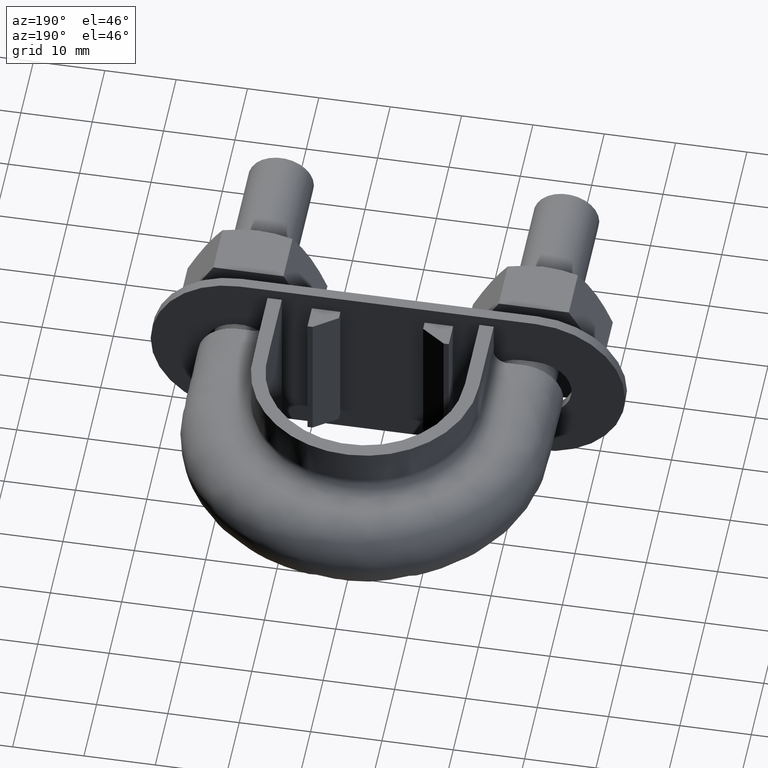
[diagram: clean part render]
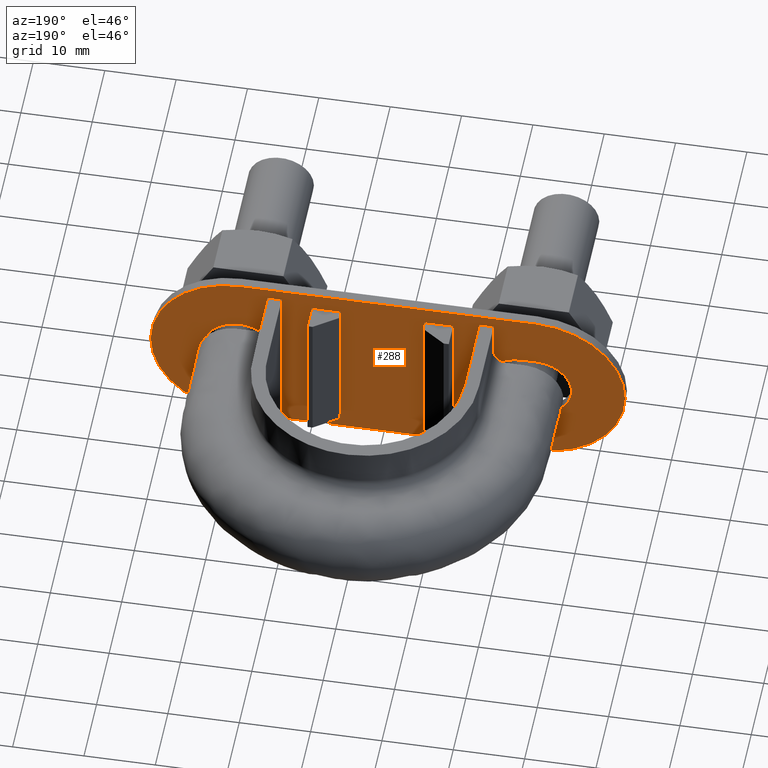
[diagram: same view with one face highlighted and labeled with its STEP entity id]
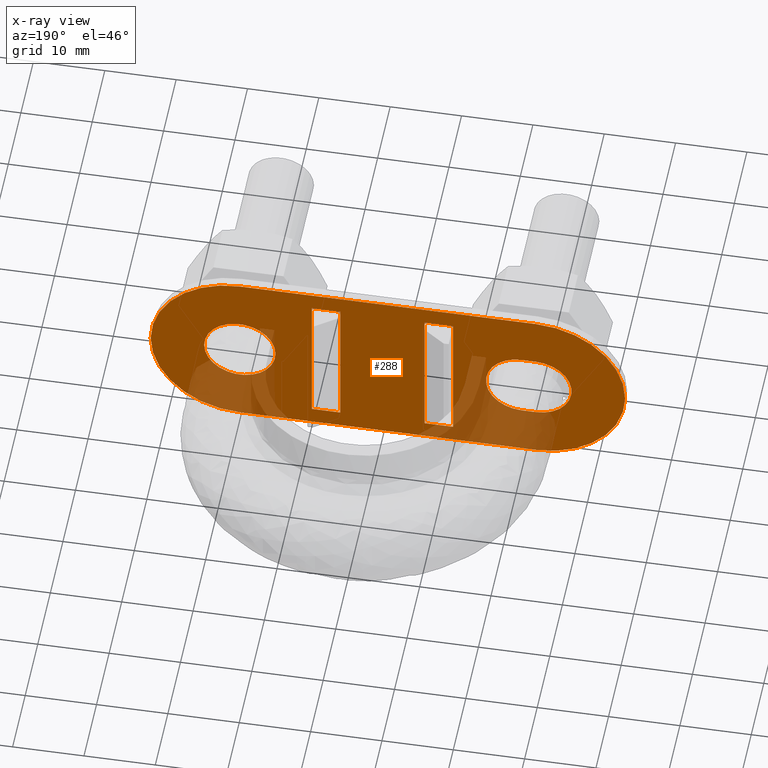
[diagram: x-ray of the same camera — body ghosted, the highlighted face saturated]
A machine part, auxiliary view. The second image highlights one B-rep face of the part: STEP entity #288.
The next image is the same camera in x-ray: the body ghosted, the highlighted face saturated — about 21% of this face is hidden behind the body in this view.
In plain terms, the highlighted planar face has unit normal (-0, 1, 0).
Its self-contained STEP definition (entity closure, byte-faithful):
#288 = ADVANCED_FACE( '', ( #419, #420, #421, #422, #423 ), #424, .T. );
#419 = FACE_BOUND( '', #1362, .T. );
#420 = FACE_OUTER_BOUND( '', #1363, .T. );
#421 = FACE_BOUND( '', #1364, .T. );
#422 = FACE_BOUND( '', #1365, .T. );
#423 = FACE_BOUND( '', #1366, .T. );
#424 = PLANE( '', #1367 );
#1362 = EDGE_LOOP( '', ( #1701, #1702, #1703, #1704 ) );
#1363 = EDGE_LOOP( '', ( #1705, #1706, #1707, #1708, #1709, #1710 ) );
#1364 = EDGE_LOOP( '', ( #1711 ) );
#1365 = EDGE_LOOP( '', ( #1712, #1713, #1714, #1715 ) );
#1366 = EDGE_LOOP( '', ( #1716, #1717, #1718, #1719 ) );
#1367 = AXIS2_PLACEMENT_3D( '', #1720, #1721, #1722 );
#1701 = ORIENTED_EDGE( '', *, *, #2329, .T. );
#1702 = ORIENTED_EDGE( '', *, *, #2330, .T. );
#1703 = ORIENTED_EDGE( '', *, *, #2331, .F. );
#1704 = ORIENTED_EDGE( '', *, *, #2332, .F. );
#1705 = ORIENTED_EDGE( '', *, *, #2316, .T. );
#1706 = ORIENTED_EDGE( '', *, *, #2333, .T. );
#1707 = ORIENTED_EDGE( '', *, *, #2334, .T. );
#1708 = ORIENTED_EDGE( '', *, *, #2335, .T. );
#1709 = ORIENTED_EDGE( '', *, *, #2336, .T. );
#1710 = ORIENTED_EDGE( '', *, *, #2337, .T. );
#1711 = ORIENTED_EDGE( '', *, *, #2338, .F. );
#1712 = ORIENTED_EDGE( '', *, *, #2339, .F. );
#1713 = ORIENTED_EDGE( '', *, *, #2326, .F. );
#1714 = ORIENTED_EDGE( '', *, *, #2340, .F. );
#1715 = ORIENTED_EDGE( '', *, *, #2341, .F. );
#1716 = ORIENTED_EDGE( '', *, *, #2342, .F. );
#1717 = ORIENTED_EDGE( '', *, *, #2343, .T. );
#1718 = ORIENTED_EDGE( '', *, *, #2344, .T. );
#1719 = ORIENTED_EDGE( '', *, *, #2345, .F. );
#1720 = CARTESIAN_POINT( '', ( -21.5000000000058, 32.7999999999977, 2.43519182712688E-007 ) );
#1721 = DIRECTION( '', ( -1.09118538489341E-013, 1.00000000000000, 1.11964944317086E-013 ) );
#1722 = DIRECTION( '', ( 1.13266433177148E-008, -1.11964943081139E-013, 1.00000000000000 ) );
#2316 = EDGE_CURVE( '', #2563, #2564, #2565, .T. );
#2326 = EDGE_CURVE( '', #2579, #2580, #2581, .T. );
#2329 = EDGE_CURVE( '', #2584, #2585, #2586, .T. );
#2330 = EDGE_CURVE( '', #2585, #2587, #2588, .T. );
#2331 = EDGE_CURVE( '', #2589, #2587, #2590, .T. );
#2332 = EDGE_CURVE( '', #2584, #2589, #2591, .T. );
#2333 = EDGE_CURVE( '', #2564, #2592, #2593, .T. );
#2334 = EDGE_CURVE( '', #2592, #2594, #2595, .T. );
#2335 = EDGE_CURVE( '', #2594, #2596, #2597, .T. );
#2336 = EDGE_CURVE( '', #2596, #2598, #2599, .T. );
#2337 = EDGE_CURVE( '', #2598, #2563, #2600, .T. );
#2338 = EDGE_CURVE( '', #2601, #2601, #2602, .T. );
#2339 = EDGE_CURVE( '', #2580, #2603, #2604, .F. );
#2340 = EDGE_CURVE( '', #2605, #2579, #2606, .F. );
#2341 = EDGE_CURVE( '', #2603, #2605, #2607, .T. );
#2342 = EDGE_CURVE( '', #2608, #2609, #2610, .T. );
#2343 = EDGE_CURVE( '', #2608, #2611, #2612, .T. );
#2344 = EDGE_CURVE( '', #2611, #2613, #2614, .T. );
#2345 = EDGE_CURVE( '', #2609, #2613, #2615, .T. );
#2563 = VERTEX_POINT( '', #3101 );
#2564 = VERTEX_POINT( '', #3102 );
#2565 = CIRCLE( '', #3103, 12.5000000000000 );
#2579 = VERTEX_POINT( '', #3126 );
#2580 = VERTEX_POINT( '', #3127 );
#2581 = LINE( '', #3128, #3129 );
#2584 = VERTEX_POINT( '', #3134 );
#2585 = VERTEX_POINT( '', #3135 );
#2586 = LINE( '', #3136, #3137 );
#2587 = VERTEX_POINT( '', #3138 );
#2588 = LINE( '', #3139, #3140 );
#2589 = VERTEX_POINT( '', #3141 );
#2590 = LINE( '', #3142, #3143 );
#2591 = LINE( '', #3144, #3145 );
#2592 = VERTEX_POINT( '', #3146 );
#2593 = LINE( '', #3147, #3148 );
#2594 = VERTEX_POINT( '', #3149 );
#2595 = CIRCLE( '', #3150, 12.5000000000000 );
#2596 = VERTEX_POINT( '', #3151 );
#2597 = CIRCLE( '', #3152, 12.5000000000000 );
#2598 = VERTEX_POINT( '', #3153 );
#2599 = LINE( '', #3154, #3155 );
#2600 = CIRCLE( '', #3156, 12.5000000000000 );
#2601 = VERTEX_POINT( '', #3157 );
#2602 = CIRCLE( '', #3158, 5.00000000000000 );
#2603 = VERTEX_POINT( '', #3159 );
#2604 = CIRCLE( '', #3160, 5.00000000000000 );
#2605 = VERTEX_POINT( '', #3161 );
#2606 = CIRCLE( '', #3162, 5.00000000000000 );
#2607 = LINE( '', #3163, #3164 );
#2608 = VERTEX_POINT( '', #3165 );
#2609 = VERTEX_POINT( '', #3166 );
#2610 = LINE( '', #3167, #3168 );
#2611 = VERTEX_POINT( '', #3169 );
#2612 = LINE( '', #3170, #3171 );
#2613 = VERTEX_POINT( '', #3172 );
#2614 = LINE( '', #3173, #3174 );
#2615 = LINE( '', #3175, #3176 );
#3101 = CARTESIAN_POINT( '', ( -34.0000000000058, 32.7999999999963, 3.85102224184123E-007 ) );
#3102 = CARTESIAN_POINT( '', ( -21.4999998584228, 32.7999999999963, 12.5000002435192 ) );
#3103 = AXIS2_PLACEMENT_3D( '', #3666, #3667, #3668 );
#3126 = CARTESIAN_POINT( '', ( -19.5000000566390, 32.7999999999985, -4.99999977913410 ) );
#3127 = CARTESIAN_POINT( '', ( -21.5000000566390, 32.7999999999983, -4.99999975648082 ) );
#3128 = CARTESIAN_POINT( '', ( -21.5000000566390, 32.7999999999983, -4.99999975648082 ) );
#3129 = VECTOR( '', #3678, 1000.00000000000 );
#3134 = CARTESIAN_POINT( '', ( -9.90000011327222, 32.8000000000001, -9.99999988786988 ) );
#3135 = CARTESIAN_POINT( '', ( -5.90000011327221, 32.8000000000005, -9.99999993317645 ) );
#3136 = CARTESIAN_POINT( '', ( -9.90000011327222, 32.8000000000001, -9.99999988786988 ) );
#3137 = VECTOR( '', #3681, 1000.00000000000 );
#3138 = CARTESIAN_POINT( '', ( -5.89999988673935, 32.7999999999983, 10.0000000668235 ) );
#3139 = CARTESIAN_POINT( '', ( -5.90000011327221, 32.8000000000005, -9.99999993317645 ) );
#3140 = VECTOR( '', #3682, 1000.00000000000 );
#3141 = CARTESIAN_POINT( '', ( -9.89999988673938, 32.7999999999978, 10.0000001121301 ) );
#3142 = CARTESIAN_POINT( '', ( -9.89999988673936, 32.7999999999978, 10.0000001121301 ) );
#3143 = VECTOR( '', #3683, 1000.00000000000 );
#3144 = CARTESIAN_POINT( '', ( -9.90000011327222, 32.8000000000001, -9.99999988786988 ) );
#3145 = VECTOR( '', #3684, 1000.00000000000 );
#3146 = CARTESIAN_POINT( '', ( 20.0000001415773, 32.8000000000008, 12.4999997734635 ) );
#3147 = CARTESIAN_POINT( '', ( -21.4999998584228, 32.7999999999963, 12.5000002435192 ) );
#3148 = VECTOR( '', #3685, 1000.00000000000 );
#3149 = CARTESIAN_POINT( '', ( 32.4999999999942, 32.8000000000036, -3.68119549505017E-007 ) );
#3150 = AXIS2_PLACEMENT_3D( '', #3686, #3687, #3688 );
#3151 = CARTESIAN_POINT( '', ( 19.9999998584112, 32.8000000000036, -12.5000002265365 ) );
#3152 = AXIS2_PLACEMENT_3D( '', #3689, #3690, #3691 );
#3153 = CARTESIAN_POINT( '', ( -21.5000001415889, 32.7999999999991, -12.4999997564808 ) );
#3154 = CARTESIAN_POINT( '', ( 19.9999998584112, 32.8000000000036, -12.5000002265365 ) );
#3155 = VECTOR( '', #3692, 1000.00000000000 );
#3156 = AXIS2_PLACEMENT_3D( '', #3693, #3694, #3695 );
#3157 = CARTESIAN_POINT( '', ( 24.9999999999942, 32.8000100000028, -2.83169729825206E-007 ) );
#3158 = AXIS2_PLACEMENT_3D( '', #3696, #3697, #3698 );
#3159 = CARTESIAN_POINT( '', ( -21.4999999433726, 32.7999999999971, 5.00000024351918 ) );
#3160 = AXIS2_PLACEMENT_3D( '', #3699, #3700, #3701 );
#3161 = CARTESIAN_POINT( '', ( -19.4999999433726, 32.7999999999974, 5.00000022086590 ) );
#3162 = AXIS2_PLACEMENT_3D( '', #3702, #3703, #3704 );
#3163 = CARTESIAN_POINT( '', ( -19.4999999433726, 32.7999999999974, 5.00000022086590 ) );
#3164 = VECTOR( '', #3705, 1000.00000000000 );
#3165 = CARTESIAN_POINT( '', ( 5.89999988672776, 32.8000000000018, -10.0000000668308 ) );
#3166 = CARTESIAN_POINT( '', ( 5.90000011326062, 32.7999999999996, 9.99999993316916 ) );
#3167 = CARTESIAN_POINT( '', ( 5.89999988672776, 32.8000000000018, -10.0000000668308 ) );
#3168 = VECTOR( '', #3706, 1000.00000000000 );
#3169 = CARTESIAN_POINT( '', ( 9.89999988672776, 32.8000000000022, -10.0000001121374 ) );
#3170 = CARTESIAN_POINT( '', ( 5.89999988672775, 32.8000000000018, -10.0000000668308 ) );
#3171 = VECTOR( '', #3707, 1000.00000000000 );
#3172 = CARTESIAN_POINT( '', ( 9.90000011326062, 32.8000000000000, 9.99999988786258 ) );
#3173 = CARTESIAN_POINT( '', ( 9.89999988672776, 32.8000000000022, -10.0000001121374 ) );
#3174 = VECTOR( '', #3708, 1000.00000000000 );
#3175 = CARTESIAN_POINT( '', ( 5.90000011326062, 32.7999999999996, 9.99999993316916 ) );
#3176 = VECTOR( '', #3709, 1000.00000000000 );
#3666 = CARTESIAN_POINT( '', ( -21.5000000000058, 32.7999999999977, 2.43519182712688E-007 ) );
#3667 = DIRECTION( '', ( -1.09118538489341E-013, 1.00000000000000, 1.11964944317086E-013 ) );
#3668 = DIRECTION( '', ( -1.00000000000000, -1.09118539757528E-013, 1.13266431789369E-008 ) );
#3678 = DIRECTION( '', ( -1.00000000000000, -1.09118539757528E-013, 1.13266433177148E-008 ) );
#3681 = DIRECTION( '', ( 1.00000000000000, 1.09118539757528E-013, -1.13266433177148E-008 ) );
#3682 = DIRECTION( '', ( 1.13266432158973E-008, -1.11564863224399E-013, 1.00000000000000 ) );
#3683 = DIRECTION( '', ( 1.00000000000000, 1.09118539757528E-013, -1.13266433177148E-008 ) );
#3684 = DIRECTION( '', ( 1.13266432158973E-008, -1.11564863224399E-013, 1.00000000000000 ) );
#3685 = DIRECTION( '', ( 1.00000000000000, 1.09118539757528E-013, -1.13266433177148E-008 ) );
#3686 = CARTESIAN_POINT( '', ( 19.9999999999942, 32.8000000000022, -2.26536514972476E-007 ) );
#3687 = DIRECTION( '', ( -1.09118538489341E-013, 1.00000000000000, 1.11964944317086E-013 ) );
#3688 = DIRECTION( '', ( 1.13266427626033E-008, -1.11964943081139E-013, 1.00000000000000 ) );
#3689 = CARTESIAN_POINT( '', ( 19.9999999999942, 32.8000000000022, -2.26536511503029E-007 ) );
#3690 = DIRECTION( '', ( -1.09118538489341E-013, 1.00000000000000, 1.11964944317086E-013 ) );
#3691 = DIRECTION( '', ( 1.00000000000000, 1.09118539757528E-013, -1.13266431789369E-008 ) );
#3692 = DIRECTION( '', ( -1.00000000000000, -1.09118539757528E-013, 1.13266433177148E-008 ) );
#3693 = CARTESIAN_POINT( '', ( -21.5000000000058, 32.7999999999977, 2.43519186182135E-007 ) );
#3694 = DIRECTION( '', ( -1.09118538489341E-013, 1.00000000000000, 1.11964944317086E-013 ) );
#3695 = DIRECTION( '', ( -1.13266430401590E-008, 1.11964943081139E-013, -1.00000000000000 ) );
#3696 = CARTESIAN_POINT( '', ( 19.9999999999942, 32.8000100000022, -2.26536513236633E-007 ) );
#3697 = DIRECTION( '', ( -1.09118538489341E-013, 1.00000000000000, 1.11964944317086E-013 ) );
#3698 = DIRECTION( '', ( 1.00000000000000, 1.09118539757528E-013, -1.13266433177148E-008 ) );
#3699 = CARTESIAN_POINT( '', ( -21.5000000000058, 32.7999999999977, 2.43519184447412E-007 ) );
#3700 = DIRECTION( '', ( 1.09118538489341E-013, -1.00000000000000, -1.11964944317086E-013 ) );
#3701 = DIRECTION( '', ( -1.00000000000000, -1.09118539757528E-013, 1.13266433177148E-008 ) );
#3702 = CARTESIAN_POINT( '', ( -19.5000000000058, 32.7999999999979, 2.20865897811982E-007 ) );
#3703 = DIRECTION( '', ( 1.09118538489341E-013, -1.00000000000000, -1.11964944317086E-013 ) );
#3704 = DIRECTION( '', ( -1.00000000000000, -1.09118539757528E-013, 1.13266433177148E-008 ) );
#3705 = DIRECTION( '', ( 1.00000000000000, 1.09118539757528E-013, -1.13266433177148E-008 ) );
#3706 = DIRECTION( '', ( 1.13266432158973E-008, -1.11564863224399E-013, 1.00000000000000 ) );
#3707 = DIRECTION( '', ( 1.00000000000000, 1.09118539757528E-013, -1.13266433177148E-008 ) );
#3708 = DIRECTION( '', ( 1.13266432158973E-008, -1.11564863224399E-013, 1.00000000000000 ) );
#3709 = DIRECTION( '', ( 1.00000000000000, 1.09118539757528E-013, -1.13266433177148E-008 ) );